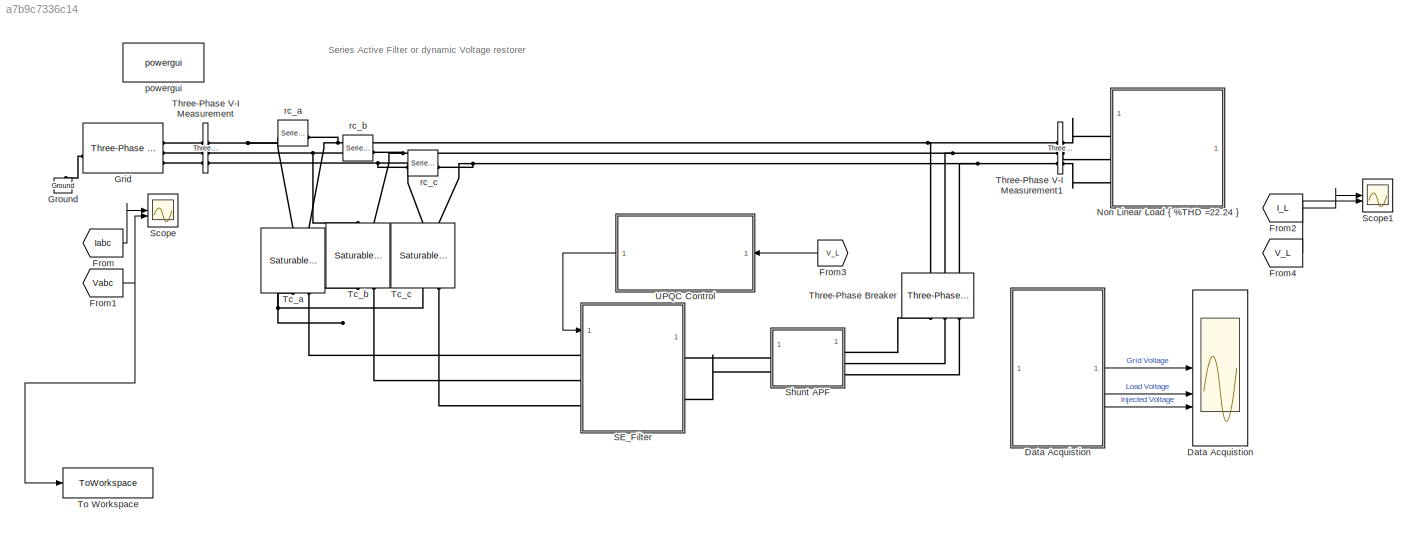
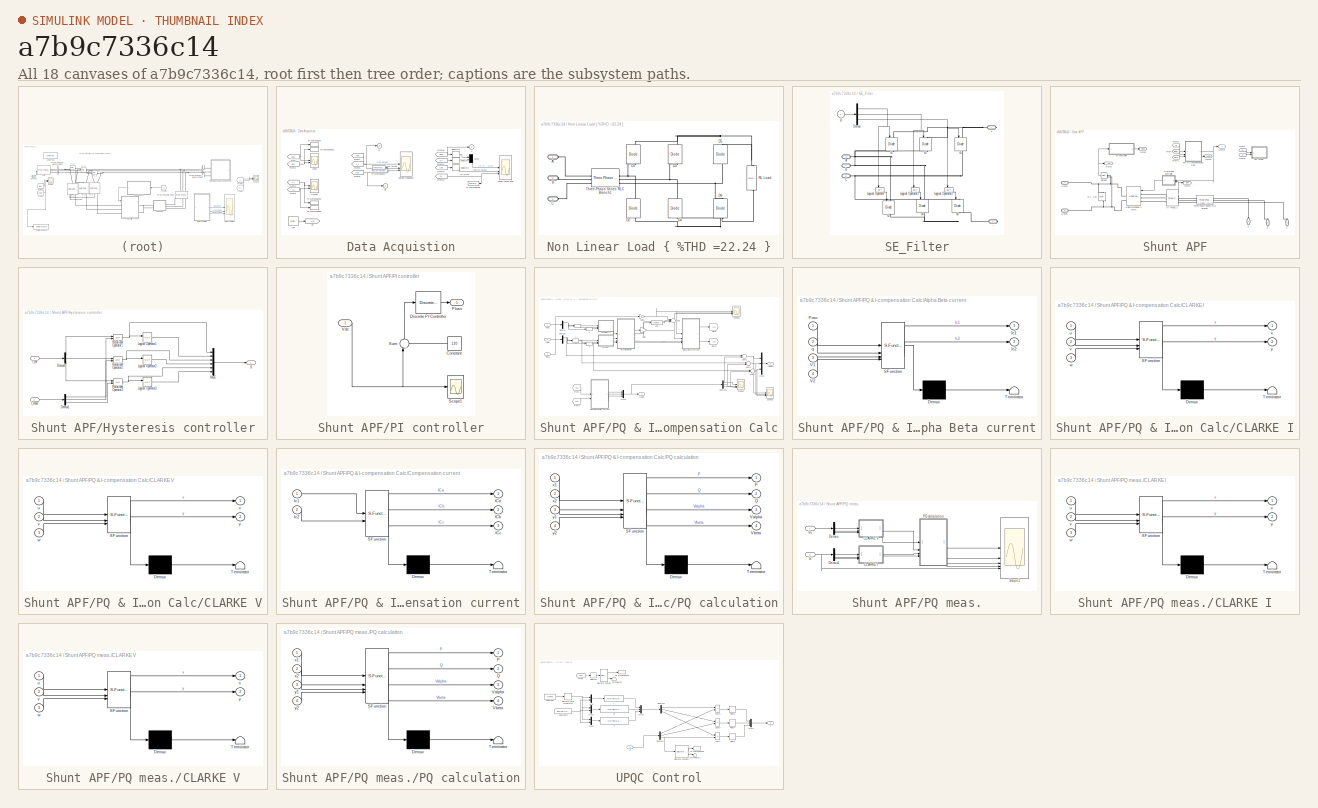
[diagram: thumbnail index - all 18 canvases of the model, root first then tree order]
MODEL slx_a7b9c7336c14
KIND model
CONFIG AbsTol = auto
CONFIG EnableMultiTasking = off
CONFIG FixedStep = auto
CONFIG InitFcn = Ts=5e-6;
CONFIG MaxStep = auto
CONFIG MinStep = auto
CONFIG RelTol = 1e-3
CONFIG SampleTimeConstraint = Unconstrained
CONFIG SolverName = VariableStepAuto
CONFIG StartTime = 0.0
CONFIG StopTime = 1
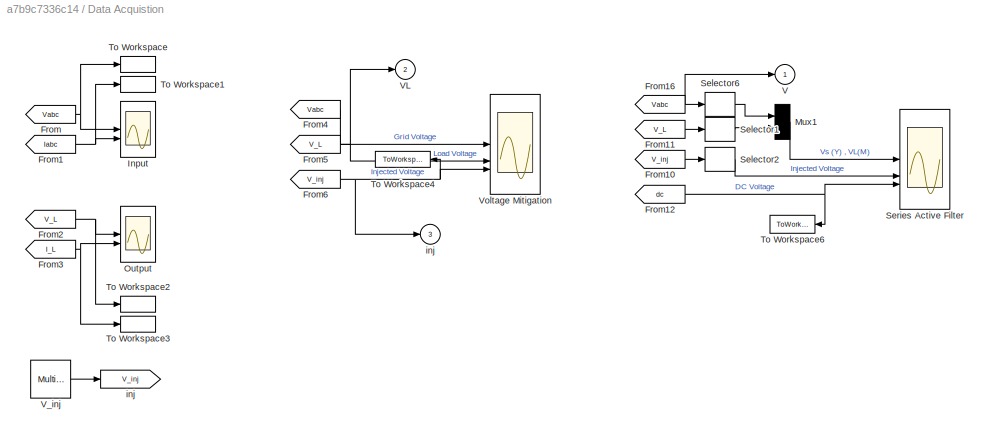
BLOCK [SubSystem] Data Acquistion
BLOCK [From] Data Acquistion/From
  GotoTag = Vabc
  TagVisibility = global
BLOCK [From] Data Acquistion/From1
  GotoTag = Iabc
  TagVisibility = global
BLOCK [From] Data Acquistion/From10
  GotoTag = V_inj
  TagVisibility = global
BLOCK [From] Data Acquistion/From11
  GotoTag = V_L
  TagVisibility = global
BLOCK [From] Data Acquistion/From12
  GotoTag = dc
BLOCK [From] Data Acquistion/From16
  GotoTag = Vabc
  TagVisibility = global
BLOCK [From] Data Acquistion/From2
  GotoTag = V_L
  TagVisibility = global
BLOCK [From] Data Acquistion/From3
  GotoTag = I_L
  TagVisibility = global
BLOCK [From] Data Acquistion/From4
  GotoTag = Vabc
  TagVisibility = global
BLOCK [From] Data Acquistion/From5
  GotoTag = V_L
  TagVisibility = global
BLOCK [From] Data Acquistion/From6
  GotoTag = V_inj
  TagVisibility = global
BLOCK [Scope] Data Acquistion/Input
  Floating = off
  NumInputPorts = 2
  ScopeSpecificationString = C++SS(StrPVP('Location','[95, 96, 553, 673]'),StrPVP('Open','off'),MxPVP('AxesTitles',54,'struct(''axes1'',''%<SignalLabel>'',''axes2'',''%<SignalLabel>'')'),StrPVP('TimeRange','0.1'),StrPVP('YMin','-400~-15'),StrPVP('YMax','400~15'),StrPVP('SaveName','Grid_pi'),StrPVP('DataFormat','StructureWithTime'),StrPVP('LimitDataPoints','off'),StrPVP('BlockParamSampleTime','0'),StrPVP('Decimation','1'),StrP...<+34ch>
BLOCK [Mux] Data Acquistion/Mux1
  DisplayOption = signals
  Inputs = 2
BLOCK [Scope] Data Acquistion/Output
  Floating = off
  NumInputPorts = 2
  ScopeSpecificationString = C++SS(StrPVP('Location','[644, 113, 1059, 634]'),StrPVP('Open','off'),StrPVP('ZoomMode','xonly'),MxPVP('AxesTitles',54,'struct(''axes1'',''%<SignalLabel>'',''axes2'',''%<SignalLabel>'')'),StrPVP('TimeRange','0.1'),StrPVP('YMin','-400~-10'),StrPVP('YMax','400~10'),StrPVP('SaveName','Load_pi'),StrPVP('DataFormat','StructureWithTime'),StrPVP('LimitDataPoints','off'),StrPVP('BlockParamSampleTime','0')...<+64ch>
BLOCK [Selector] Data Acquistion/Selector1
  IndexOptions = Index vector (dialog)
  Indices = 1
  InputPortWidth = 3
  OutputSizes = 1
BLOCK [Selector] Data Acquistion/Selector2
  IndexOptions = Index vector (dialog)
  Indices = 1
  InputPortWidth = 3
  OutputSizes = 1
BLOCK [Selector] Data Acquistion/Selector6
  IndexOptions = Index vector (dialog)
  Indices = 1
  InputPortWidth = 3
  OutputSizes = 1
BLOCK [Scope] Data Acquistion/Series Active Filter
  Floating = off
  NumInputPorts = 3
  ScopeSpecificationString = C++SS(StrPVP('Location','[723, 65, 1337, 717]'),StrPVP('Open','off'),StrPVP('TickLabels','on'),StrPVP('ZoomMode','yonly'),MxPVP('AxesTitles',54,'struct(''axes1'',''%<SignalLabel>'',''axes2'',''%<SignalLabel>'',''axes3'',''%<SignalLabel>'')'),StrPVP('TimeRange','2'),StrPVP('YMin','-350~-175~600'),StrPVP('YMax','350~175~1000'),StrPVP('SaveName','se_pi'),StrPVP('DataFormat','StructureWithTime'),StrPV...<+125ch>
BLOCK [ToWorkspace] Data Acquistion/To Workspace
  MaxDataPoints = inf
  SampleTime = Ts
  VariableName = Vs_pi
BLOCK [ToWorkspace] Data Acquistion/To Workspace1
  MaxDataPoints = inf
  SampleTime = Ts
  VariableName = Is_pi
BLOCK [ToWorkspace] Data Acquistion/To Workspace2
  MaxDataPoints = inf
  SampleTime = Ts
  VariableName = VL_pi
BLOCK [ToWorkspace] Data Acquistion/To Workspace3
  MaxDataPoints = inf
  SampleTime = Ts
  VariableName = IL_pi
BLOCK [ToWorkspace] Data Acquistion/To Workspace4
  MaxDataPoints = inf
  SampleTime = Ts
  VariableName = V_inj_pi
BLOCK [ToWorkspace] Data Acquistion/To Workspace6
  MaxDataPoints = inf
  SampleTime = Ts
  VariableName = Vdc_pi
BLOCK [Outport] Data Acquistion/V
BLOCK [Outport] Data Acquistion/VL
  Port = 2
BLOCK [Reference] Data Acquistion/V_inj  REF=spsMultimeterLib/Multimeter
  SourceBlock = spsMultimeterLib/Multimeter
  SourceType = Multimeter
BLOCK [Scope] Data Acquistion/Voltage Mitigation
  Floating = off
  NumInputPorts = 3
  ScopeSpecificationString = C++SS(StrPVP('Location','[334, 69, 992, 700]'),StrPVP('Open','off'),StrPVP('ZoomMode','xonly'),MxPVP('AxesTitles',54,'struct(''axes1'',''%<SignalLabel>'',''axes2'',''%<SignalLabel>'',''axes3'',''%<SignalLabel>'')'),StrPVP('TimeRange','0.2'),StrPVP('YMin','-500~-500~-200'),StrPVP('YMax','500~500~200'),StrPVP('SaveToWorkspace','on'),StrPVP('SaveName','voltage_pi'),StrPVP('DataFormat','StructureWithT...<+136ch>
BLOCK [Goto] Data Acquistion/inj
  GotoTag = V_inj
  TagVisibility = global
BLOCK [Outport] Data Acquistion/inj 
  Port = 3
BLOCK [From] From
  GotoTag = Iabc
  TagVisibility = global
BLOCK [From] From1
  GotoTag = Vabc
  TagVisibility = global
BLOCK [From] From2
  GotoTag = I_L
  TagVisibility = global
BLOCK [From] From3
  GotoTag = V_L
  TagVisibility = global
BLOCK [From] From4
  GotoTag = V_L
  TagVisibility = global
BLOCK [Reference] Grid  REF=spsThreePhaseProgrammableVoltageSourceLib/Three-Phase
Programmable
Voltage Source
  LibrarySourceBlock = sps_lib/Sources/Three-Phase\nProgrammable\nVoltage Source
  SourceBlock = spsThreePhaseProgrammableVoltageSourceLib/Three-Phase\nProgrammable\nVoltage Source
  SourceType = Three-Phase Programmable Voltage Source
BLOCK [Reference] Ground  REF=spsGroundLib/Ground
  NameLocation = right
  SourceBlock = spsGroundLib/Ground
  SourceType = Ground
BLOCK [SubSystem] Non Linear Load { %THD =22.24 }
BLOCK [PMIOPort] Non Linear Load { %THD =22.24 }/A
  Side = Left
BLOCK [PMIOPort] Non Linear Load { %THD =22.24 }/B
  Port = 2
  Side = Left
BLOCK [PMIOPort] Non Linear Load { %THD =22.24 }/C
  Port = 3
  Side = Left
BLOCK [Reference] Non Linear Load { %THD =22.24 }/D1  REF=spsDiodeLib/Diode
  NameLocation = left
  SourceBlock = spsDiodeLib/Diode
  SourceType = Diode
BLOCK [Reference] Non Linear Load { %THD =22.24 }/D2  REF=spsDiodeLib/Diode
  NameLocation = left
  SourceBlock = spsDiodeLib/Diode
  SourceType = Diode
BLOCK [Reference] Non Linear Load { %THD =22.24 }/D3  REF=spsDiodeLib/Diode
  NameLocation = left
  SourceBlock = spsDiodeLib/Diode
  SourceType = Diode
BLOCK [Reference] Non Linear Load { %THD =22.24 }/D4  REF=spsDiodeLib/Diode
  NameLocation = left
  SourceBlock = spsDiodeLib/Diode
  SourceType = Diode
BLOCK [Reference] Non Linear Load { %THD =22.24 }/D5  REF=spsDiodeLib/Diode
  NameLocation = left
  SourceBlock = spsDiodeLib/Diode
  SourceType = Diode
BLOCK [Reference] Non Linear Load { %THD =22.24 }/D6  REF=spsDiodeLib/Diode
  NameLocation = left
  SourceBlock = spsDiodeLib/Diode
  SourceType = Diode
BLOCK [Reference] Non Linear Load { %THD =22.24 }/RL Load  REF=spsSeriesRLCBranchLib/Series RLC Branch
  NameLocation = right
  SourceBlock = spsSeriesRLCBranchLib/Series RLC Branch
  SourceType = Series RLC Branch
BLOCK [Reference] Non Linear Load { %THD =22.24 }/Three-Phase Series RLC Branch1  REF=spsThreePhaseSeriesRLCBranchLib/Three-Phase
Series RLC Branch
  AttributesFormatString = \n
  SourceBlock = spsThreePhaseSeriesRLCBranchLib/Three-Phase\nSeries RLC Branch
  SourceType = Three-Phase Series RLC Branch
BLOCK [SubSystem] SE_Filter
BLOCK [PMIOPort] SE_Filter/+
  Side = Right
BLOCK [PMIOPort] SE_Filter/-
  Port = 2
  Side = Right
BLOCK [PMIOPort] SE_Filter/A
  Port = 3
  Side = Left
BLOCK [PMIOPort] SE_Filter/B
  Port = 4
  Side = Left
BLOCK [PMIOPort] SE_Filter/C
  Port = 5
  Side = Left
BLOCK [Demux] SE_Filter/Demux
  DisplayOption = none
  NameLocation = top
  Outputs = 3
BLOCK [Logic] SE_Filter/Logical Operator
  AllPortsSameDT = off
  NameLocation = left
  Operator = NOT
  OutDataTypeStr = boolean
BLOCK [Logic] SE_Filter/Logical Operator1
  AllPortsSameDT = off
  NameLocation = left
  Operator = NOT
  OutDataTypeStr = boolean
BLOCK [Logic] SE_Filter/Logical Operator2
  AllPortsSameDT = off
  NameLocation = left
  Operator = NOT
  OutDataTypeStr = boolean
BLOCK [Inport] SE_Filter/g
  NameLocation = top
BLOCK [Reference] SE_Filter/s1  REF=spsIGBTDiodeLib/IGBT//Diode
  NameLocation = left
  SourceBlock = spsIGBTDiodeLib/IGBT//Diode
  SourceType = IGBT/Diode
BLOCK [Reference] SE_Filter/s2  REF=spsIGBTDiodeLib/IGBT//Diode
  NameLocation = left
  SourceBlock = spsIGBTDiodeLib/IGBT//Diode
  SourceType = IGBT/Diode
BLOCK [Reference] SE_Filter/s3  REF=spsIGBTDiodeLib/IGBT//Diode
  NameLocation = left
  SourceBlock = spsIGBTDiodeLib/IGBT//Diode
  SourceType = IGBT/Diode
BLOCK [Reference] SE_Filter/s4  REF=spsIGBTDiodeLib/IGBT//Diode
  NameLocation = left
  SourceBlock = spsIGBTDiodeLib/IGBT//Diode
  SourceType = IGBT/Diode
BLOCK [Reference] SE_Filter/s5  REF=spsIGBTDiodeLib/IGBT//Diode
  NameLocation = left
  SourceBlock = spsIGBTDiodeLib/IGBT//Diode
  SourceType = IGBT/Diode
BLOCK [Reference] SE_Filter/s6  REF=spsIGBTDiodeLib/IGBT//Diode
  NameLocation = left
  SourceBlock = spsIGBTDiodeLib/IGBT//Diode
  SourceType = IGBT/Diode
BLOCK [Scope] Scope
  Floating = off
  NumInputPorts = 2
  ScopeSpecificationString = Simulink.scopes.TimeScopeBlockCfg('CurrentConfiguration', extmgr.ConfigurationSet(extmgr.Configuration('Core','General UI',true),extmgr.Configuration('Core','Source UI',true),extmgr.Configuration('Sources','WiredSimulink',true,'DataLoggingVariableName','ScopeData2'),extmgr.Configuration('Visuals','Time Domain',true,'SerializedDisplays',{struct('MinYLimReal','-79.27941','MaxYLimReal','79.36965','YL...<+2346ch>
BLOCK [Scope] Scope1
  Floating = off
  NumInputPorts = 2
  ScopeSpecificationString = Simulink.scopes.TimeScopeBlockCfg('CurrentConfiguration', extmgr.ConfigurationSet(extmgr.Configuration('Core','General UI',true),extmgr.Configuration('Core','Source UI',true),extmgr.Configuration('Sources','WiredSimulink',true,'DataLoggingVariableName','ScopeData3'),extmgr.Configuration('Visuals','Time Domain',true,'SerializedDisplays',{struct('MinYLimReal','-10.20042','MaxYLimReal','10.26348','YL...<+2342ch>
BLOCK [SubSystem] Shunt APF
  NameLocation = top
  PortSchema = {"entries":[{"content":{"sides":[{"content":{"connectorIds":["LConn1","LConn2","LConn3"]},"type":"ConnectorPlacement.EquallySpacedRectSide","uuid":"d6bbf745-3af2-48b6-83a9-f1a4b39ae2fb"},{"content":{"connectorIds":["RConn1","RConn2","Out1"],"side":"RIGHT"},"type":"ConnectorPlacement.EquallySpacedRectSide","uuid":"e94a56cb-32a6-4b87-b27c-70bac7a36721"},{"content":{"side":"TOP"},"type":"ConnectorPla...<+261ch>
BLOCK [PMIOPort] Shunt APF/Conn4
  NameLocation = top
  Port = 4
  Side = Right
BLOCK [PMIOPort] Shunt APF/Conn5
  NameLocation = top
  Port = 5
  Side = Right
BLOCK [Reference] Shunt APF/DC Cap  REF=spsSeriesRLCBranchLib/Series RLC Branch
  NameLocation = left
  SourceBlock = spsSeriesRLCBranchLib/Series RLC Branch
  SourceType = Series RLC Branch
BLOCK [From] Shunt APF/From
  CloseFcn = tagdialog Close
  GotoTag = Iload
BLOCK [From] Shunt APF/From1
  CloseFcn = tagdialog Close
  GotoTag = Ploss
  TagVisibility = global
BLOCK [From] Shunt APF/From3
  CloseFcn = tagdialog Close
  GotoTag = Vs
BLOCK [From] Shunt APF/From7
  CloseFcn = tagdialog Close
  GotoTag = Vs
BLOCK [From] Shunt APF/From8
  CloseFcn = tagdialog Close
  GotoTag = Is
BLOCK [Goto] Shunt APF/Goto1
  GotoTag = Vdc
  TagVisibility = global
BLOCK [Goto] Shunt APF/Goto2
  GotoTag = Icomp
BLOCK [Goto] Shunt APF/Goto3
  GotoTag = Ploss
  TagVisibility = global
BLOCK [Goto] Shunt APF/Goto4
  GotoTag = Iapf
  TagVisibility = global
BLOCK [SubSystem] Shunt APF/Hysteresis controller
  NameLocation = top
BLOCK [Demux] Shunt APF/Hysteresis controller/Demux1
  NameLocation = top
  Outputs = 3
BLOCK [Demux] Shunt APF/Hysteresis controller/Demux9
  NameLocation = top
  Outputs = 3
BLOCK [Inport] Shunt APF/Hysteresis controller/I_meas
  Port = 2
BLOCK [Inport] Shunt APF/Hysteresis controller/I_ref
BLOCK [Logic] Shunt APF/Hysteresis controller/Logical Operator1
  AllPortsSameDT = off
  Operator = NOT
  OutDataTypeStr = boolean
BLOCK [Logic] Shunt APF/Hysteresis controller/Logical Operator2
  AllPortsSameDT = off
  Operator = NOT
  OutDataTypeStr = boolean
BLOCK [Logic] Shunt APF/Hysteresis controller/Logical Operator3
  AllPortsSameDT = off
  Operator = NOT
  OutDataTypeStr = boolean
BLOCK [Mux] Shunt APF/Hysteresis controller/Mux5
  DisplayOption = bar
  Inputs = 6
BLOCK [RelationalOperator] Shunt APF/Hysteresis controller/Relational Operator1
  InputSameDT = off
  OutDataTypeStr = boolean
BLOCK [RelationalOperator] Shunt APF/Hysteresis controller/Relational Operator2
  InputSameDT = off
  OutDataTypeStr = boolean
BLOCK [RelationalOperator] Shunt APF/Hysteresis controller/Relational Operator3
  InputSameDT = off
  OutDataTypeStr = boolean
BLOCK [Outport] Shunt APF/Hysteresis controller/g
BLOCK [Outport] Shunt APF/Icomp*
BLOCK [SubSystem] Shunt APF/PI controller
BLOCK [Constant] Shunt APF/PI controller/Constant
  NameLocation = top
  Value = 120
BLOCK [Reference] Shunt APF/PI controller/Discrete PI Controller  REF=powerlib_extras/Discrete 
Control Blocks/Discrete
PI Controller
  SourceBlock = powerlib_extras/Discrete \nControl Blocks/Discrete\nPI Controller
  SourceType = Discrete PI Controller
BLOCK [Outport] Shunt APF/PI controller/Ploss
BLOCK [Scope] Shunt APF/PI controller/Scope1
  Floating = off
  NumInputPorts = 1
  ScopeSpecificationString = C++SS(StrPVP('Location','[6, 48, 1026, 727]'),StrPVP('Open','off'),StrPVP('ZoomMode','yonly'),MxPVP('AxesTitles',54,'struct(''axes1'',''%<SignalLabel>'')'),StrPVP('TimeRange','0.1'),StrPVP('YMin','-1000'),StrPVP('YMax','14000'),StrPVP('SaveToWorkspace','on'),StrPVP('SaveName','psb3phPWM1_str1'),StrPVP('DataFormat','StructureWithTime'),StrPVP('LimitDataPoints','off'),StrPVP('MaxDataPoints','500000'...<+100ch>
BLOCK [Sum] Shunt APF/PI controller/Sum
  Inputs = |-+
  NameLocation = right
BLOCK [Inport] Shunt APF/PI controller/Vdc
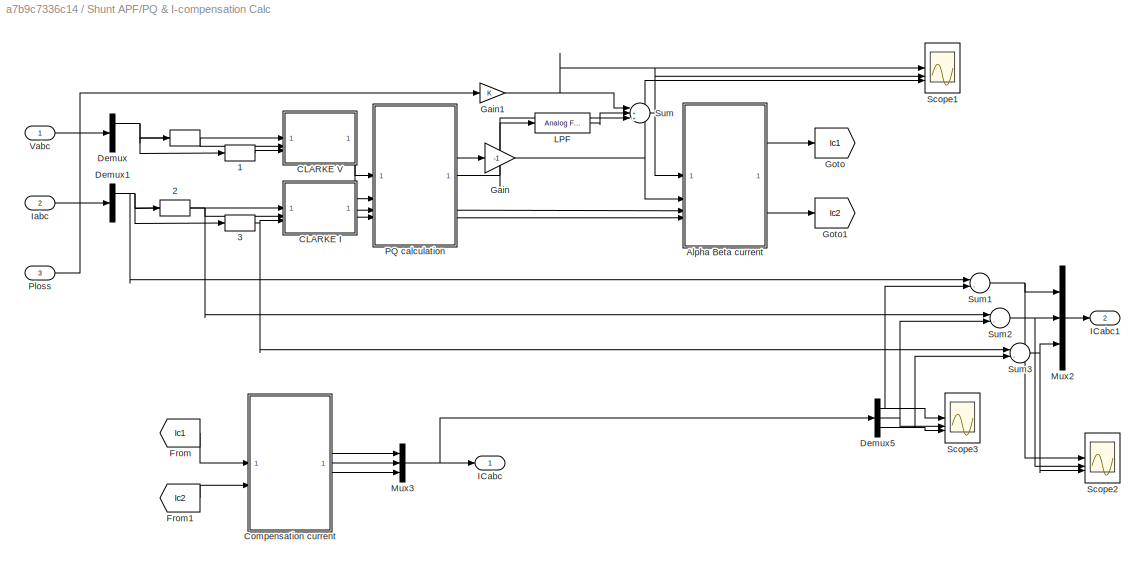
BLOCK [SubSystem] Shunt APF/PQ & I-compensation Calc
BLOCK [TransportDelay] Shunt APF/PQ & I-compensation Calc/ 
  BufferSize = 6890
  DelayTime = 0.006666666
BLOCK [TransportDelay] Shunt APF/PQ & I-compensation Calc/ 1
  BufferSize = 77889
  DelayTime = 0.013333333
BLOCK [TransportDelay] Shunt APF/PQ & I-compensation Calc/ 2
  BufferSize = 6789
  DelayTime = 0.006666666
BLOCK [TransportDelay] Shunt APF/PQ & I-compensation Calc/ 3
  BufferSize = 5667
  DelayTime = 0.013333333
BLOCK [SubSystem] Shunt APF/PQ & I-compensation Calc/Alpha Beta current
  ErrorFcn = Stateflow.Translate.translate
  PermitHierarchicalResolution = ExplicitOnly
  SFBlockType = MATLAB Function
  TreatAsAtomicUnit = on
BLOCK [Demux] Shunt APF/PQ & I-compensation Calc/Alpha Beta current/ Demux 
  Outputs = 1
BLOCK [S-Function] Shunt APF/PQ & I-compensation Calc/Alpha Beta current/ SFunction 
  EnableBusSupport = on
  FunctionName = sf_sfun
  PortCounts = [4 3]
  SFcnIsStateOwnerBlock = off
  SFunctionDeploymentMode = off
  Tag = Stateflow S-Function 5
BLOCK [Terminator] Shunt APF/PQ & I-compensation Calc/Alpha Beta current/ Terminator 
BLOCK [Outport] Shunt APF/PQ & I-compensation Calc/Alpha Beta current/Ic1
BLOCK [Outport] Shunt APF/PQ & I-compensation Calc/Alpha Beta current/Ic2
  Port = 2
BLOCK [Inport] Shunt APF/PQ & I-compensation Calc/Alpha Beta current/Posc
BLOCK [Inport] Shunt APF/PQ & I-compensation Calc/Alpha Beta current/V1
  Port = 3
BLOCK [Inport] Shunt APF/PQ & I-compensation Calc/Alpha Beta current/V2
  Port = 4
BLOCK [Inport] Shunt APF/PQ & I-compensation Calc/Alpha Beta current/q
  Port = 2
BLOCK [SubSystem] Shunt APF/PQ & I-compensation Calc/CLARKE I
  ErrorFcn = Stateflow.Translate.translate
  PermitHierarchicalResolution = ExplicitOnly
  SFBlockType = MATLAB Function
  TreatAsAtomicUnit = on
BLOCK [Demux] Shunt APF/PQ & I-compensation Calc/CLARKE I/ Demux 
  Outputs = 1
BLOCK [S-Function] Shunt APF/PQ & I-compensation Calc/CLARKE I/ SFunction 
  EnableBusSupport = on
  FunctionName = sf_sfun
  PortCounts = [3 3]
  SFcnIsStateOwnerBlock = off
  SFunctionDeploymentMode = off
  Tag = Stateflow S-Function 1
BLOCK [Terminator] Shunt APF/PQ & I-compensation Calc/CLARKE I/ Terminator 
BLOCK [Inport] Shunt APF/PQ & I-compensation Calc/CLARKE I/u
BLOCK [Inport] Shunt APF/PQ & I-compensation Calc/CLARKE I/v
  Port = 2
BLOCK [Inport] Shunt APF/PQ & I-compensation Calc/CLARKE I/w
  Port = 3
BLOCK [Outport] Shunt APF/PQ & I-compensation Calc/CLARKE I/x
BLOCK [Outport] Shunt APF/PQ & I-compensation Calc/CLARKE I/y
  Port = 2
BLOCK [SubSystem] Shunt APF/PQ & I-compensation Calc/CLARKE V
  ErrorFcn = Stateflow.Translate.translate
  PermitHierarchicalResolution = ExplicitOnly
  SFBlockType = MATLAB Function
  TreatAsAtomicUnit = on
BLOCK [Demux] Shunt APF/PQ & I-compensation Calc/CLARKE V/ Demux 
  Outputs = 1
BLOCK [S-Function] Shunt APF/PQ & I-compensation Calc/CLARKE V/ SFunction 
  EnableBusSupport = on
  FunctionName = sf_sfun
  PortCounts = [3 3]
  SFcnIsStateOwnerBlock = off
  SFunctionDeploymentMode = off
  Tag = Stateflow S-Function 2
BLOCK [Terminator] Shunt APF/PQ & I-compensation Calc/CLARKE V/ Terminator 
BLOCK [Inport] Shunt APF/PQ & I-compensation Calc/CLARKE V/u
BLOCK [Inport] Shunt APF/PQ & I-compensation Calc/CLARKE V/v
  Port = 2
BLOCK [Inport] Shunt APF/PQ & I-compensation Calc/CLARKE V/w
  Port = 3
BLOCK [Outport] Shunt APF/PQ & I-compensation Calc/CLARKE V/x
BLOCK [Outport] Shunt APF/PQ & I-compensation Calc/CLARKE V/y
  Port = 2
BLOCK [SubSystem] Shunt APF/PQ & I-compensation Calc/Compensation current
  ErrorFcn = Stateflow.Translate.translate
  PermitHierarchicalResolution = ExplicitOnly
  SFBlockType = MATLAB Function
  TreatAsAtomicUnit = on
BLOCK [Demux] Shunt APF/PQ & I-compensation Calc/Compensation current/ Demux 
  Outputs = 1
BLOCK [S-Function] Shunt APF/PQ & I-compensation Calc/Compensation current/ SFunction 
  EnableBusSupport = on
  FunctionName = sf_sfun
  PortCounts = [2 4]
  SFcnIsStateOwnerBlock = off
  SFunctionDeploymentMode = off
  Tag = Stateflow S-Function 4
BLOCK [Terminator] Shunt APF/PQ & I-compensation Calc/Compensation current/ Terminator 
BLOCK [Outport] Shunt APF/PQ & I-compensation Calc/Compensation current/ICa
BLOCK [Outport] Shunt APF/PQ & I-compensation Calc/Compensation current/ICb
  Port = 2
BLOCK [Outport] Shunt APF/PQ & I-compensation Calc/Compensation current/ICc
  Port = 3
BLOCK [Inport] Shunt APF/PQ & I-compensation Calc/Compensation current/Ic1
BLOCK [Inport] Shunt APF/PQ & I-compensation Calc/Compensation current/Ic2
  Port = 2
BLOCK [Demux] Shunt APF/PQ & I-compensation Calc/Demux
  Outputs = 3
BLOCK [Demux] Shunt APF/PQ & I-compensation Calc/Demux1
  Outputs = 3
BLOCK [Demux] Shunt APF/PQ & I-compensation Calc/Demux5
  Outputs = 3
BLOCK [From] Shunt APF/PQ & I-compensation Calc/From
  GotoTag = Ic1
BLOCK [From] Shunt APF/PQ & I-compensation Calc/From1
  GotoTag = Ic2
BLOCK [Gain] Shunt APF/PQ & I-compensation Calc/Gain
  Gain = -1
BLOCK [Gain] Shunt APF/PQ & I-compensation Calc/Gain1
BLOCK [Goto] Shunt APF/PQ & I-compensation Calc/Goto
  GotoTag = Ic1
BLOCK [Goto] Shunt APF/PQ & I-compensation Calc/Goto1
  GotoTag = Ic2
BLOCK [Outport] Shunt APF/PQ & I-compensation Calc/ICabc
BLOCK [Outport] Shunt APF/PQ & I-compensation Calc/ICabc1
  Port = 2
BLOCK [Inport] Shunt APF/PQ & I-compensation Calc/Iabc
  Port = 2
BLOCK [Reference] Shunt APF/PQ & I-compensation Calc/LPF  REF=dspfdesign/Analog
Filter Design
  SourceBlock = dspfdesign/Analog\nFilter Design
  SourceType = Analog Filter Design
BLOCK [Mux] Shunt APF/PQ & I-compensation Calc/Mux2
  DisplayOption = bar
  Inputs = 3
BLOCK [Mux] Shunt APF/PQ & I-compensation Calc/Mux3
  DisplayOption = bar
  Inputs = 3
BLOCK [SubSystem] Shunt APF/PQ & I-compensation Calc/PQ calculation
  ErrorFcn = Stateflow.Translate.translate
  PermitHierarchicalResolution = ExplicitOnly
  SFBlockType = MATLAB Function
  TreatAsAtomicUnit = on
BLOCK [Demux] Shunt APF/PQ & I-compensation Calc/PQ calculation/ Demux 
  Outputs = 1
BLOCK [S-Function] Shunt APF/PQ & I-compensation Calc/PQ calculation/ SFunction 
  EnableBusSupport = on
  FunctionName = sf_sfun
  PortCounts = [4 5]
  SFcnIsStateOwnerBlock = off
  SFunctionDeploymentMode = off
  Tag = Stateflow S-Function 3
BLOCK [Terminator] Shunt APF/PQ & I-compensation Calc/PQ calculation/ Terminator 
BLOCK [Outport] Shunt APF/PQ & I-compensation Calc/PQ calculation/P
BLOCK [Outport] Shunt APF/PQ & I-compensation Calc/PQ calculation/Q
  Port = 2
BLOCK [Outport] Shunt APF/PQ & I-compensation Calc/PQ calculation/Valpha
  Port = 3
BLOCK [Outport] Shunt APF/PQ & I-compensation Calc/PQ calculation/Vbeta
  Port = 4
BLOCK [Inport] Shunt APF/PQ & I-compensation Calc/PQ calculation/x1
BLOCK [Inport] Shunt APF/PQ & I-compensation Calc/PQ calculation/x2
  Port = 2
BLOCK [Inport] Shunt APF/PQ & I-compensation Calc/PQ calculation/y1
  Port = 3
BLOCK [Inport] Shunt APF/PQ & I-compensation Calc/PQ calculation/y2
  Port = 4
BLOCK [Inport] Shunt APF/PQ & I-compensation Calc/Ploss
  Port = 3
BLOCK [Scope] Shunt APF/PQ & I-compensation Calc/Scope1
  Floating = off
  NumInputPorts = 3
  ScopeSpecificationString = C++SS(StrPVP('Location','[255, 57, 1275, 736]'),StrPVP('Open','off'),StrPVP('ZoomMode','xonly'),MxPVP('AxesTitles',54,'struct(''axes1'',''%<SignalLabel>'',''axes2'',''%<SignalLabel>'',''axes3'',''%<SignalLabel>'')'),StrPVP('TimeRange','0.1'),StrPVP('YMin','3.575~4.5~-22'),StrPVP('YMax','3.875~9.5~-17'),StrPVP('SaveToWorkspace','on'),StrPVP('SaveName','psb3phPWM1_str9'),StrPVP('DataFormat','Structu...<+176ch>
BLOCK [Scope] Shunt APF/PQ & I-compensation Calc/Scope2
  Floating = off
  NumInputPorts = 3
  ScopeSpecificationString = C++SS(StrPVP('Location','[255, 57, 1275, 736]'),StrPVP('Open','off'),StrPVP('ZoomMode','xonly'),MxPVP('AxesTitles',54,'struct(''axes1'',''%<SignalLabel>'',''axes2'',''%<SignalLabel>'',''axes3'',''%<SignalLabel>'')'),StrPVP('TimeRange','0.1'),StrPVP('YMin','0.9825~-0.7725~-0.265'),StrPVP('YMax','1.0025~-0.735~-0.21'),StrPVP('SaveToWorkspace','on'),StrPVP('SaveName','psb3phPWM1_str2'),StrPVP('DataFo...<+190ch>
BLOCK [Scope] Shunt APF/PQ & I-compensation Calc/Scope3
  Floating = off
  NumInputPorts = 3
  ScopeSpecificationString = C++SS(StrPVP('Location','[255, 57, 1275, 736]'),StrPVP('Open','off'),StrPVP('ZoomMode','xonly'),MxPVP('AxesTitles',54,'struct(''axes1'',''%<SignalLabel>'',''axes2'',''%<SignalLabel>'',''axes3'',''%<SignalLabel>'')'),StrPVP('TimeRange','0.1'),StrPVP('YMin','-0.0625~-0.01~0.0325'),StrPVP('YMax','-0.04~0.01~0.07'),StrPVP('SaveToWorkspace','on'),StrPVP('SaveName','psb3phPWM1_str7'),StrPVP('DataFormat'...<+185ch>
BLOCK [Sum] Shunt APF/PQ & I-compensation Calc/Sum
  Inputs = |++-
BLOCK [Sum] Shunt APF/PQ & I-compensation Calc/Sum1
  Inputs = |-+
BLOCK [Sum] Shunt APF/PQ & I-compensation Calc/Sum2
  Inputs = |-+
BLOCK [Sum] Shunt APF/PQ & I-compensation Calc/Sum3
  Inputs = |-+
BLOCK [Inport] Shunt APF/PQ & I-compensation Calc/Vabc
BLOCK [SubSystem] Shunt APF/PQ meas.
BLOCK [SubSystem] Shunt APF/PQ meas./CLARKE I
  ErrorFcn = Stateflow.Translate.translate
  PermitHierarchicalResolution = ExplicitOnly
  SFBlockType = MATLAB Function
  TreatAsAtomicUnit = on
BLOCK [Demux] Shunt APF/PQ meas./CLARKE I/ Demux 
  Outputs = 1
BLOCK [S-Function] Shunt APF/PQ meas./CLARKE I/ SFunction 
  EnableBusSupport = on
  FunctionName = sf_sfun
  PortCounts = [3 3]
  SFcnIsStateOwnerBlock = off
  SFunctionDeploymentMode = off
  Tag = Stateflow S-Function 6
BLOCK [Terminator] Shunt APF/PQ meas./CLARKE I/ Terminator 
BLOCK [Inport] Shunt APF/PQ meas./CLARKE I/u
BLOCK [Inport] Shunt APF/PQ meas./CLARKE I/v
  Port = 2
BLOCK [Inport] Shunt APF/PQ meas./CLARKE I/w
  Port = 3
BLOCK [Outport] Shunt APF/PQ meas./CLARKE I/x
BLOCK [Outport] Shunt APF/PQ meas./CLARKE I/y
  Port = 2
BLOCK [SubSystem] Shunt APF/PQ meas./CLARKE V
  ErrorFcn = Stateflow.Translate.translate
  PermitHierarchicalResolution = ExplicitOnly
  SFBlockType = MATLAB Function
  TreatAsAtomicUnit = on
BLOCK [Demux] Shunt APF/PQ meas./CLARKE V/ Demux 
  Outputs = 1
BLOCK [S-Function] Shunt APF/PQ meas./CLARKE V/ SFunction 
  EnableBusSupport = on
  FunctionName = sf_sfun
  PortCounts = [3 3]
  SFcnIsStateOwnerBlock = off
  SFunctionDeploymentMode = off
  Tag = Stateflow S-Function 7
BLOCK [Terminator] Shunt APF/PQ meas./CLARKE V/ Terminator 
BLOCK [Inport] Shunt APF/PQ meas./CLARKE V/u
BLOCK [Inport] Shunt APF/PQ meas./CLARKE V/v
  Port = 2
BLOCK [Inport] Shunt APF/PQ meas./CLARKE V/w
  Port = 3
BLOCK [Outport] Shunt APF/PQ meas./CLARKE V/x
BLOCK [Outport] Shunt APF/PQ meas./CLARKE V/y
  Port = 2
BLOCK [Demux] Shunt APF/PQ meas./Demux
  Outputs = 3
BLOCK [Demux] Shunt APF/PQ meas./Demux1
  Outputs = 3
BLOCK [Inport] Shunt APF/PQ meas./Is
  Port = 2
BLOCK [SubSystem] Shunt APF/PQ meas./PQ calculation
  ErrorFcn = Stateflow.Translate.translate
  PermitHierarchicalResolution = ExplicitOnly
  SFBlockType = MATLAB Function
  TreatAsAtomicUnit = on
BLOCK [Demux] Shunt APF/PQ meas./PQ calculation/ Demux 
  Outputs = 1
BLOCK [S-Function] Shunt APF/PQ meas./PQ calculation/ SFunction 
  EnableBusSupport = on
  FunctionName = sf_sfun
  PortCounts = [4 5]
  SFcnIsStateOwnerBlock = off
  SFunctionDeploymentMode = off
  Tag = Stateflow S-Function 8
BLOCK [Terminator] Shunt APF/PQ meas./PQ calculation/ Terminator 
BLOCK [Outport] Shunt APF/PQ meas./PQ calculation/P
BLOCK [Outport] Shunt APF/PQ meas./PQ calculation/Q
  Port = 2
BLOCK [Outport] Shunt APF/PQ meas./PQ calculation/Valpha
  Port = 3
BLOCK [Outport] Shunt APF/PQ meas./PQ calculation/Vbeta
  Port = 4
BLOCK [Inport] Shunt APF/PQ meas./PQ calculation/x1
BLOCK [Inport] Shunt APF/PQ meas./PQ calculation/x2
  Port = 2
BLOCK [Inport] Shunt APF/PQ meas./PQ calculation/y1
  Port = 3
BLOCK [Inport] Shunt APF/PQ meas./PQ calculation/y2
  Port = 4
BLOCK [Scope] Shunt APF/PQ meas./Scope1
  Floating = off
  NumInputPorts = 5
  ScopeSpecificationString = C++SS(StrPVP('Location','[255, 57, 1275, 736]'),StrPVP('Open','off'),StrPVP('ZoomMode','xonly'),MxPVP('AxesTitles',54,'struct(''axes1'',''%<SignalLabel>'',''axes2'',''%<SignalLabel>'',''axes3'',''%<SignalLabel>'',''axes4'',''%<SignalLabel>'',''axes5'',''%<SignalLabel>'')'),StrPVP('TimeRange','0.1'),StrPVP('YMin','49.75~-1~-39.955~-2.7~-1.25'),StrPVP('YMax','51.5~1~-39.91~-1.8~0.75'),StrPVP('SaveTo...<+257ch>
BLOCK [Inport] Shunt APF/PQ meas./Vs
BLOCK [Reference] Shunt APF/Three-Phase Series RLC Branch  REF=spsThreePhaseSeriesRLCBranchLib/Three-Phase
Series RLC Branch
  AttributesFormatString = \n
  SourceBlock = spsThreePhaseSeriesRLCBranchLib/Three-Phase\nSeries RLC Branch
  SourceType = Three-Phase Series RLC Branch
BLOCK [Reference] Shunt APF/Universal Bridge 3 arms  REF=spsUniversalBridgeLib/Universal Bridge
  AttributesFormatString = \n
  SourceBlock = spsUniversalBridgeLib/Universal Bridge
  SourceType = Universal Bridge
BLOCK [Reference] Shunt APF/V-I meas.1  REF=spsThreePhaseVIMeasurementLib/Three-Phase
V-I Measurement
  SourceBlock = spsThreePhaseVIMeasurementLib/Three-Phase\nV-I Measurement
  SourceType = Three-Phase VI Measurement
BLOCK [Reference] Shunt APF/Voltage  REF=spsVoltageMeasurementLib/Voltage Measurement
  NameLocation = top
  SourceBlock = spsVoltageMeasurementLib/Voltage Measurement
  SourceType = Voltage Measurement
BLOCK [PMIOPort] Shunt APF/a
  NameLocation = left
  Side = Left
BLOCK [PMIOPort] Shunt APF/b
  NameLocation = left
  Port = 2
  Side = Left
BLOCK [PMIOPort] Shunt APF/c
  NameLocation = left
  Port = 3
  Side = Left
BLOCK [Reference] Tc_a  REF=spsSaturableTransformerLib/Saturable Transformer
  LibrarySourceBlock = sps_lib/Power Grid Elements/Saturable Transformer
  NameLocation = right
  SourceBlock = spsSaturableTransformerLib/Saturable Transformer
  SourceType = Saturable Transformer
BLOCK [Reference] Tc_b  REF=spsSaturableTransformerLib/Saturable Transformer
  LibrarySourceBlock = sps_lib/Power Grid Elements/Saturable Transformer
  NameLocation = right
  SourceBlock = spsSaturableTransformerLib/Saturable Transformer
  SourceType = Saturable Transformer
BLOCK [Reference] Tc_c  REF=spsSaturableTransformerLib/Saturable Transformer
  LibrarySourceBlock = sps_lib/Power Grid Elements/Saturable Transformer
  NameLocation = right
  SourceBlock = spsSaturableTransformerLib/Saturable Transformer
  SourceType = Saturable Transformer
BLOCK [Reference] Three-Phase Breaker  REF=spsThreePhaseBreakerLib/Three-Phase Breaker
  LibrarySourceBlock = sps_lib/Power Grid Elements/Three-Phase Breaker
  NameLocation = left
  SourceBlock = spsThreePhaseBreakerLib/Three-Phase Breaker
  SourceType = Three-Phase Breaker
BLOCK [Reference] Three-Phase V-I Measurement  REF=spsThreePhaseVIMeasurementLib/Three-Phase
V-I Measurement
  SourceBlock = spsThreePhaseVIMeasurementLib/Three-Phase\nV-I Measurement
  SourceType = Three-Phase VI Measurement
BLOCK [Reference] Three-Phase V-I Measurement1  REF=spsThreePhaseVIMeasurementLib/Three-Phase
V-I Measurement
  SourceBlock = spsThreePhaseVIMeasurementLib/Three-Phase\nV-I Measurement
  SourceType = Three-Phase VI Measurement
BLOCK [ToWorkspace] To Workspace
  FixptAsFi = on
  MaxDataPoints = inf
  SampleTime = -1
  SaveFormat = Timeseries
  VariableName = Rm
BLOCK [SubSystem] UPQC Control
  NameLocation = top
BLOCK [Fcn] UPQC Control/A
  Expr = u(2)*sin(u(1))
BLOCK [Fcn] UPQC Control/B
  Expr = u(2)*sin(u(1)-2*pi/3)
BLOCK [Fcn] UPQC Control/C
  Expr = u(2)*sin(u(1)+2*pi/3)
BLOCK [Constant] UPQC Control/Constant
  Value = 2*pi*50
BLOCK [Constant] UPQC Control/Constant1
  Value = 380*sqrt(2/3)
BLOCK [Demux] UPQC Control/Demux2
  Outputs = 3
BLOCK [Demux] UPQC Control/Demux3
  Outputs = 3
BLOCK [Reference] UPQC Control/Discrete Fourier  REF=powerlib_extras/Discrete
Measurements/Discrete 
Fourier
  SourceBlock = powerlib_extras/Discrete\nMeasurements/Discrete \nFourier
  SourceType = Discrete Fourier
BLOCK [Reference] UPQC Control/Discrete Fourier1  REF=powerlib_extras/Discrete
Measurements/Discrete 
Fourier
  SourceBlock = powerlib_extras/Discrete\nMeasurements/Discrete \nFourier
  SourceType = Discrete Fourier
BLOCK [DiscreteIntegrator] UPQC Control/Discrete-Time Integrator
  ICPrevOutput = DiscIntNeverNeededParam
  ICPrevScaledInput = DiscIntNeverNeededParam
  SampleTime = Ts
BLOCK [From] UPQC Control/From
  GotoTag = Vabc
  TagVisibility = global
BLOCK [Mux] UPQC Control/Mux
  DisplayOption = bar
  Inputs = 2
BLOCK [Mux] UPQC Control/Mux1
  DisplayOption = bar
  Inputs = 2
BLOCK [Mux] UPQC Control/Mux2
  DisplayOption = bar
  Inputs = 2
BLOCK [Mux] UPQC Control/Mux3
  DisplayOption = bar
  Inputs = 3
BLOCK [Mux] UPQC Control/Mux4
  DisplayOption = bar
  Inputs = 3
BLOCK [Relay] UPQC Control/Relay3
  OffSwitchValue = -1
  OnSwitchValue = 1
BLOCK [Relay] UPQC Control/Relay4
  OffSwitchValue = -1
  OnSwitchValue = 1
BLOCK [Relay] UPQC Control/Relay5
  OffSwitchValue = -1
  OnSwitchValue = 1
BLOCK [Selector] UPQC Control/Selector
  IndexOptions = Index vector (dialog)
  Indices = 1
  InputPortWidth = 3
  OutputSizes = 1
BLOCK [Sum] UPQC Control/Sum3
  IconShape = rectangular
  Inputs = +-
BLOCK [Sum] UPQC Control/Sum4
  IconShape = rectangular
  Inputs = +-
BLOCK [Sum] UPQC Control/Sum5
  IconShape = rectangular
  Inputs = +-
BLOCK [Terminator] UPQC Control/Terminator
BLOCK [Terminator] UPQC Control/Terminator1
BLOCK [ToWorkspace] UPQC Control/To Workspace1
  MaxDataPoints = inf
  SampleTime = Ts
  VariableName = mag
BLOCK [ToWorkspace] UPQC Control/To Workspace2
  MaxDataPoints = inf
  SampleTime = Ts
  VariableName = mag_L
BLOCK [Outport] UPQC Control/V*
BLOCK [Inport] UPQC Control/VL
BLOCK [Reference] powergui  REF=sps_lib/powergui
  LibrarySourceBlock = sps_lib/powergui
  Priority = 1
  SourceBlock = sps_lib/powergui
  SourceType = PSB option menu block
BLOCK [Reference] rc_a  REF=spsSeriesRLCBranchLib/Series RLC Branch
  SourceBlock = spsSeriesRLCBranchLib/Series RLC Branch
  SourceType = Series RLC Branch
BLOCK [Reference] rc_b  REF=spsSeriesRLCBranchLib/Series RLC Branch
  SourceBlock = spsSeriesRLCBranchLib/Series RLC Branch
  SourceType = Series RLC Branch
BLOCK [Reference] rc_c  REF=spsSeriesRLCBranchLib/Series RLC Branch
  SourceBlock = spsSeriesRLCBranchLib/Series RLC Branch
  SourceType = Series RLC Branch
ANNOTATION (root): Series Active Filter or dynamic Voltage restorer
ANNOTATION Shunt APF: Coupling Inductor
LINE Data Acquistion/From10:1 -> Data Acquistion/Selector2:1
LINE Data Acquistion/From11:1 -> Data Acquistion/Selector1:1
NET Data Acquistion/From12:1 -> Data Acquistion/Series Active Filter:3, Data Acquistion/To Workspace6:1
NET Data Acquistion/From16:1 -> Data Acquistion/Selector6:1, Data Acquistion/V:1
NET Data Acquistion/From1:1 -> Data Acquistion/Input:2, Data Acquistion/To Workspace1:1
NET Data Acquistion/From2:1 -> Data Acquistion/Output:1, Data Acquistion/To Workspace2:1
NET Data Acquistion/From3:1 -> Data Acquistion/Output:2, Data Acquistion/To Workspace3:1
LINE Data Acquistion/From4:1 -> Data Acquistion/Voltage Mitigation:1
NET Data Acquistion/From5:1 -> Data Acquistion/VL:1, Data Acquistion/Voltage Mitigation:2
NET Data Acquistion/From6:1 -> Data Acquistion/To Workspace4:1, Data Acquistion/Voltage Mitigation:3, Data Acquistion/inj :1
NET Data Acquistion/From:1 -> Data Acquistion/Input:1, Data Acquistion/To Workspace:1
LINE Data Acquistion/Mux1:1 -> Data Acquistion/Series Active Filter:1
LINE Data Acquistion/Selector1:1 -> Data Acquistion/Mux1:2
LINE Data Acquistion/Selector2:1 -> Data Acquistion/Series Active Filter:2
LINE Data Acquistion/Selector6:1 -> Data Acquistion/Mux1:1
LINE Data Acquistion/V_inj:1 -> Data Acquistion/inj:1
LINE Data Acquistion:1 -> Data Acquistion:1
LINE Data Acquistion:2 -> Data Acquistion:2
LINE Data Acquistion:3 -> Data Acquistion:3
NET From1:1 -> Scope:2, To Workspace:1
LINE From2:1 -> Scope1:1
LINE From3:1 -> UPQC Control:1
LINE From4:1 -> Scope1:2
LINE From:1 -> Scope:1
NET SE_Filter/Demux:1 -> SE_Filter/Logical Operator:1, SE_Filter/s1:1
NET SE_Filter/Demux:2 -> SE_Filter/Logical Operator1:1, SE_Filter/s3:1
NET SE_Filter/Demux:3 -> SE_Filter/Logical Operator2:1, SE_Filter/s5:1
LINE SE_Filter/Logical Operator1:1 -> SE_Filter/s4:1
LINE SE_Filter/Logical Operator2:1 -> SE_Filter/s6:1
LINE SE_Filter/Logical Operator:1 -> SE_Filter/s2:1
LINE SE_Filter/g:1 -> SE_Filter/Demux:1
LINE Shunt APF/From1:1 -> Shunt APF/PQ & I-compensation Calc:3
LINE Shunt APF/From3:1 -> Shunt APF/PQ & I-compensation Calc:1
LINE Shunt APF/From7:1 -> Shunt APF/PQ meas.:1
LINE Shunt APF/From8:1 -> Shunt APF/PQ meas.:2
LINE Shunt APF/From:1 -> Shunt APF/PQ & I-compensation Calc:2
LINE Shunt APF/Hysteresis controller/Demux1:1 -> Shunt APF/Hysteresis controller/Relational Operator1:2
LINE Shunt APF/Hysteresis controller/Demux1:2 -> Shunt APF/Hysteresis controller/Relational Operator2:2
LINE Shunt APF/Hysteresis controller/Demux1:3 -> Shunt APF/Hysteresis controller/Relational Operator3:2
LINE Shunt APF/Hysteresis controller/Demux9:1 -> Shunt APF/Hysteresis controller/Relational Operator1:1
LINE Shunt APF/Hysteresis controller/Demux9:2 -> Shunt APF/Hysteresis controller/Relational Operator2:1
LINE Shunt APF/Hysteresis controller/Demux9:3 -> Shunt APF/Hysteresis controller/Relational Operator3:1
LINE Shunt APF/Hysteresis controller/I_meas:1 -> Shunt APF/Hysteresis controller/Demux1:1
LINE Shunt APF/Hysteresis controller/I_ref:1 -> Shunt APF/Hysteresis controller/Demux9:1
LINE Shunt APF/Hysteresis controller/Logical Operator1:1 -> Shunt APF/Hysteresis controller/Mux5:2
LINE Shunt APF/Hysteresis controller/Logical Operator2:1 -> Shunt APF/Hysteresis controller/Mux5:4
LINE Shunt APF/Hysteresis controller/Logical Operator3:1 -> Shunt APF/Hysteresis controller/Mux5:6
LINE Shunt APF/Hysteresis controller/Mux5:1 -> Shunt APF/Hysteresis controller/g:1
NET Shunt APF/Hysteresis controller/Relational Operator1:1 -> Shunt APF/Hysteresis controller/Logical Operator1:1, Shunt APF/Hysteresis controller/Mux5:1
NET Shunt APF/Hysteresis controller/Relational Operator2:1 -> Shunt APF/Hysteresis controller/Logical Operator2:1, Shunt APF/Hysteresis controller/Mux5:3
NET Shunt APF/Hysteresis controller/Relational Operator3:1 -> Shunt APF/Hysteresis controller/Logical Operator3:1, Shunt APF/Hysteresis controller/Mux5:5
LINE Shunt APF/Hysteresis controller:1 -> Shunt APF/Universal Bridge 3 arms:1
LINE Shunt APF/PI controller/Constant:1 -> Shunt APF/PI controller/Sum:2
LINE Shunt APF/PI controller/Discrete PI Controller:1 -> Shunt APF/PI controller/Ploss:1
LINE Shunt APF/PI controller/Sum:1 -> Shunt APF/PI controller/Discrete PI Controller:1
NET Shunt APF/PI controller/Vdc:1 -> Shunt APF/PI controller/Scope1:1, Shunt APF/PI controller/Sum:1
LINE Shunt APF/PI controller:1 -> Shunt APF/Goto3:1
LINE Shunt APF/PQ & I-compensation Calc/ 1:1 -> Shunt APF/PQ & I-compensation Calc/CLARKE V:3
NET Shunt APF/PQ & I-compensation Calc/ 2:1 -> Shunt APF/PQ & I-compensation Calc/CLARKE I:2, Shunt APF/PQ & I-compensation Calc/Sum2:1
NET Shunt APF/PQ & I-compensation Calc/ 3:1 -> Shunt APF/PQ & I-compensation Calc/CLARKE I:3, Shunt APF/PQ & I-compensation Calc/Sum3:1
LINE Shunt APF/PQ & I-compensation Calc/ :1 -> Shunt APF/PQ & I-compensation Calc/CLARKE V:2
LINE Shunt APF/PQ & I-compensation Calc/Alpha Beta current:1 -> Shunt APF/PQ & I-compensation Calc/Goto:1
LINE Shunt APF/PQ & I-compensation Calc/Alpha Beta current:2 -> Shunt APF/PQ & I-compensation Calc/Goto1:1
LINE Shunt APF/PQ & I-compensation Calc/CLARKE I:1 -> Shunt APF/PQ & I-compensation Calc/PQ calculation:3
LINE Shunt APF/PQ & I-compensation Calc/CLARKE I:2 -> Shunt APF/PQ & I-compensation Calc/PQ calculation:4
LINE Shunt APF/PQ & I-compensation Calc/CLARKE V:1 -> Shunt APF/PQ & I-compensation Calc/PQ calculation:1
LINE Shunt APF/PQ & I-compensation Calc/CLARKE V:2 -> Shunt APF/PQ & I-compensation Calc/PQ calculation:2
LINE Shunt APF/PQ & I-compensation Calc/Compensation current:1 -> Shunt APF/PQ & I-compensation Calc/Mux3:1
LINE Shunt APF/PQ & I-compensation Calc/Compensation current:2 -> Shunt APF/PQ & I-compensation Calc/Mux3:2
LINE Shunt APF/PQ & I-compensation Calc/Compensation current:3 -> Shunt APF/PQ & I-compensation Calc/Mux3:3
NET Shunt APF/PQ & I-compensation Calc/Demux1:1 -> Shunt APF/PQ & I-compensation Calc/ 2:1, Shunt APF/PQ & I-compensation Calc/ 3:1, Shunt APF/PQ & I-compensation Calc/CLARKE I:1, Shunt APF/PQ & I-compensation Calc/Sum1:1
NET Shunt APF/PQ & I-compensation Calc/Demux5:1 -> Shunt APF/PQ & I-compensation Calc/Scope3:1, Shunt APF/PQ & I-compensation Calc/Sum1:2
NET Shunt APF/PQ & I-compensation Calc/Demux5:2 -> Shunt APF/PQ & I-compensation Calc/Scope3:2, Shunt APF/PQ & I-compensation Calc/Sum2:2
NET Shunt APF/PQ & I-compensation Calc/Demux5:3 -> Shunt APF/PQ & I-compensation Calc/Scope3:3, Shunt APF/PQ & I-compensation Calc/Sum3:2
NET Shunt APF/PQ & I-compensation Calc/Demux:1 -> Shunt APF/PQ & I-compensation Calc/ 1:1, Shunt APF/PQ & I-compensation Calc/ :1, Shunt APF/PQ & I-compensation Calc/CLARKE V:1
LINE Shunt APF/PQ & I-compensation Calc/From1:1 -> Shunt APF/PQ & I-compensation Calc/Compensation current:2
LINE Shunt APF/PQ & I-compensation Calc/From:1 -> Shunt APF/PQ & I-compensation Calc/Compensation current:1
NET Shunt APF/PQ & I-compensation Calc/Gain1:1 -> Shunt APF/PQ & I-compensation Calc/Scope1:1, Shunt APF/PQ & I-compensation Calc/Sum:1
NET Shunt APF/PQ & I-compensation Calc/Gain:1 -> Shunt APF/PQ & I-compensation Calc/Alpha Beta current:2, Shunt APF/PQ & I-compensation Calc/Scope1:3
LINE Shunt APF/PQ & I-compensation Calc/Iabc:1 -> Shunt APF/PQ & I-compensation Calc/Demux1:1
LINE Shunt APF/PQ & I-compensation Calc/LPF:1 -> Shunt APF/PQ & I-compensation Calc/Sum:2
LINE Shunt APF/PQ & I-compensation Calc/Mux2:1 -> Shunt APF/PQ & I-compensation Calc/ICabc1:1
NET Shunt APF/PQ & I-compensation Calc/Mux3:1 -> Shunt APF/PQ & I-compensation Calc/Demux5:1, Shunt APF/PQ & I-compensation Calc/ICabc:1
NET Shunt APF/PQ & I-compensation Calc/PQ calculation:1 -> Shunt APF/PQ & I-compensation Calc/LPF:1, Shunt APF/PQ & I-compensation Calc/Sum:3
LINE Shunt APF/PQ & I-compensation Calc/PQ calculation:2 -> Shunt APF/PQ & I-compensation Calc/Gain:1
LINE Shunt APF/PQ & I-compensation Calc/PQ calculation:3 -> Shunt APF/PQ & I-compensation Calc/Alpha Beta current:3
LINE Shunt APF/PQ & I-compensation Calc/PQ calculation:4 -> Shunt APF/PQ & I-compensation Calc/Alpha Beta current:4
LINE Shunt APF/PQ & I-compensation Calc/Ploss:1 -> Shunt APF/PQ & I-compensation Calc/Gain1:1
NET Shunt APF/PQ & I-compensation Calc/Sum1:1 -> Shunt APF/PQ & I-compensation Calc/Mux2:1, Shunt APF/PQ & I-compensation Calc/Scope2:1
NET Shunt APF/PQ & I-compensation Calc/Sum2:1 -> Shunt APF/PQ & I-compensation Calc/Mux2:2, Shunt APF/PQ & I-compensation Calc/Scope2:2
NET Shunt APF/PQ & I-compensation Calc/Sum3:1 -> Shunt APF/PQ & I-compensation Calc/Mux2:3, Shunt APF/PQ & I-compensation Calc/Scope2:3
NET Shunt APF/PQ & I-compensation Calc/Sum:1 -> Shunt APF/PQ & I-compensation Calc/Alpha Beta current:1, Shunt APF/PQ & I-compensation Calc/Scope1:2
LINE Shunt APF/PQ & I-compensation Calc/Vabc:1 -> Shunt APF/PQ & I-compensation Calc/Demux:1
NET Shunt APF/PQ & I-compensation Calc:1 -> Shunt APF/Hysteresis controller:1, Shunt APF/Icomp*:1
LINE Shunt APF/PQ & I-compensation Calc:2 -> Shunt APF/Goto2:1
LINE Shunt APF/PQ meas./CLARKE I:1 -> Shunt APF/PQ meas./PQ calculation:3
LINE Shunt APF/PQ meas./CLARKE I:2 -> Shunt APF/PQ meas./PQ calculation:4
LINE Shunt APF/PQ meas./CLARKE V:1 -> Shunt APF/PQ meas./PQ calculation:1
LINE Shunt APF/PQ meas./CLARKE V:2 -> Shunt APF/PQ meas./PQ calculation:2
LINE Shunt APF/PQ meas./Demux1:1 -> Shunt APF/PQ meas./CLARKE I:1
LINE Shunt APF/PQ meas./Demux1:2 -> Shunt APF/PQ meas./CLARKE I:2
LINE Shunt APF/PQ meas./Demux1:3 -> Shunt APF/PQ meas./CLARKE I:3
LINE Shunt APF/PQ meas./Demux:1 -> Shunt APF/PQ meas./CLARKE V:1
LINE Shunt APF/PQ meas./Demux:2 -> Shunt APF/PQ meas./CLARKE V:2
LINE Shunt APF/PQ meas./Demux:3 -> Shunt APF/PQ meas./CLARKE V:3
NET Shunt APF/PQ meas./Is:1 -> Shunt APF/PQ meas./Demux1:1, Shunt APF/PQ meas./Scope1:5
LINE Shunt APF/PQ meas./PQ calculation:1 -> Shunt APF/PQ meas./Scope1:1
LINE Shunt APF/PQ meas./PQ calculation:2 -> Shunt APF/PQ meas./Scope1:2
LINE Shunt APF/PQ meas./PQ calculation:3 -> Shunt APF/PQ meas./Scope1:3
LINE Shunt APF/PQ meas./PQ calculation:4 -> Shunt APF/PQ meas./Scope1:4
LINE Shunt APF/PQ meas./Vs:1 -> Shunt APF/PQ meas./Demux:1
NET Shunt APF/V-I meas.1:1 -> Shunt APF/Goto4:1, Shunt APF/Hysteresis controller:2
NET Shunt APF/Voltage:1 -> Shunt APF/Goto1:1, Shunt APF/PI controller:1
LINE UPQC Control/A:1 -> UPQC Control/Mux3:1
LINE UPQC Control/B:1 -> UPQC Control/Mux3:2
LINE UPQC Control/C:1 -> UPQC Control/Mux3:3
NET UPQC Control/Constant1:1 -> UPQC Control/Mux1:2, UPQC Control/Mux2:2, UPQC Control/Mux:2
LINE UPQC Control/Constant:1 -> UPQC Control/Discrete-Time Integrator:1
LINE UPQC Control/Demux2:1 -> UPQC Control/Sum5:2
LINE UPQC Control/Demux2:2 -> UPQC Control/Sum3:2
NET UPQC Control/Demux2:3 -> UPQC Control/Discrete Fourier1:1, UPQC Control/Sum4:2
LINE UPQC Control/Demux3:1 -> UPQC Control/Sum5:1
LINE UPQC Control/Demux3:2 -> UPQC Control/Sum3:1
LINE UPQC Control/Demux3:3 -> UPQC Control/Sum4:1
LINE UPQC Control/Discrete Fourier1:1 -> UPQC Control/To Workspace2:1
LINE UPQC Control/Discrete Fourier1:2 -> UPQC Control/Terminator1:1
LINE UPQC Control/Discrete Fourier:1 -> UPQC Control/To Workspace1:1
LINE UPQC Control/Discrete Fourier:2 -> UPQC Control/Terminator:1
NET UPQC Control/Discrete-Time Integrator:1 -> UPQC Control/Mux1:1, UPQC Control/Mux2:1, UPQC Control/Mux:1
LINE UPQC Control/From:1 -> UPQC Control/Selector:1
LINE UPQC Control/Mux1:1 -> UPQC Control/B:1
LINE UPQC Control/Mux2:1 -> UPQC Control/C:1
LINE UPQC Control/Mux3:1 -> UPQC Control/Demux3:1
LINE UPQC Control/Mux4:1 -> UPQC Control/V*:1
LINE UPQC Control/Mux:1 -> UPQC Control/A:1
LINE UPQC Control/Relay3:1 -> UPQC Control/Mux4:1
LINE UPQC Control/Relay4:1 -> UPQC Control/Mux4:2
LINE UPQC Control/Relay5:1 -> UPQC Control/Mux4:3
LINE UPQC Control/Selector:1 -> UPQC Control/Discrete Fourier:1
LINE UPQC Control/Sum3:1 -> UPQC Control/Relay4:1
LINE UPQC Control/Sum4:1 -> UPQC Control/Relay5:1
LINE UPQC Control/Sum5:1 -> UPQC Control/Relay3:1
LINE UPQC Control/VL:1 -> UPQC Control/Demux2:1
LINE UPQC Control:1 -> SE_Filter:1
PLINE Grid:LConn1 -- Ground:LConn1
PLINE Grid:RConn1 -- Three-Phase V-I Measurement:LConn1
PLINE Grid:RConn2 -- Three-Phase V-I Measurement:LConn2
PLINE Grid:RConn3 -- Three-Phase V-I Measurement:LConn3
PLINE Non Linear Load { %THD =22.24 }/A:RConn1 -- Non Linear Load { %THD =22.24 }/Three-Phase Series RLC Branch1:LConn1
PLINE Non Linear Load { %THD =22.24 }/B:RConn1 -- Non Linear Load { %THD =22.24 }/Three-Phase Series RLC Branch1:LConn2
PLINE Non Linear Load { %THD =22.24 }/C:RConn1 -- Non Linear Load { %THD =22.24 }/Three-Phase Series RLC Branch1:LConn3
PNET net1: Non Linear Load { %THD =22.24 }/D1:LConn1 -- Non Linear Load { %THD =22.24 }/D2:RConn1 -- Non Linear Load { %THD =22.24 }/Three-Phase Series RLC Branch1:RConn1
PNET net2: Non Linear Load { %THD =22.24 }/D1:RConn1 -- Non Linear Load { %THD =22.24 }/D3:RConn1 -- Non Linear Load { %THD =22.24 }/D5:RConn1 -- Non Linear Load { %THD =22.24 }/RL Load:LConn1
PNET net3: Non Linear Load { %THD =22.24 }/D2:LConn1 -- Non Linear Load { %THD =22.24 }/D4:LConn1 -- Non Linear Load { %THD =22.24 }/D6:LConn1 -- Non Linear Load { %THD =22.24 }/RL Load:RConn1
PNET net4: Non Linear Load { %THD =22.24 }/D3:LConn1 -- Non Linear Load { %THD =22.24 }/D4:RConn1 -- Non Linear Load { %THD =22.24 }/Three-Phase Series RLC Branch1:RConn2
PNET net5: Non Linear Load { %THD =22.24 }/D5:LConn1 -- Non Linear Load { %THD =22.24 }/D6:RConn1 -- Non Linear Load { %THD =22.24 }/Three-Phase Series RLC Branch1:RConn3
PLINE Non Linear Load { %THD =22.24 }:LConn1 -- Three-Phase V-I Measurement1:RConn1
PLINE Non Linear Load { %THD =22.24 }:LConn2 -- Three-Phase V-I Measurement1:RConn2
PLINE Non Linear Load { %THD =22.24 }:LConn3 -- Three-Phase V-I Measurement1:RConn3
PNET net6: SE_Filter/+:RConn1 -- SE_Filter/s1:LConn1 -- SE_Filter/s3:LConn1 -- SE_Filter/s5:LConn1
PNET net7: SE_Filter/-:RConn1 -- SE_Filter/s2:RConn1 -- SE_Filter/s4:RConn1 -- SE_Filter/s6:RConn1
PNET net8: SE_Filter/A:RConn1 -- SE_Filter/s1:RConn1 -- SE_Filter/s2:LConn1
PNET net9: SE_Filter/B:RConn1 -- SE_Filter/s3:RConn1 -- SE_Filter/s4:LConn1
PNET net10: SE_Filter/C:RConn1 -- SE_Filter/s5:RConn1 -- SE_Filter/s6:LConn1
PLINE SE_Filter:LConn1 -- Tc_a:LConn2
PLINE SE_Filter:LConn2 -- Tc_b:LConn2
PLINE SE_Filter:LConn3 -- Tc_c:LConn2
PLINE SE_Filter:RConn1 -- Shunt APF:RConn1
PLINE SE_Filter:RConn2 -- Shunt APF:RConn2
PNET net11: Shunt APF/Conn4:RConn1 -- Shunt APF/DC Cap:LConn1 -- Shunt APF/Universal Bridge 3 arms:RConn1 -- Shunt APF/Voltage:LConn1
PNET net12: Shunt APF/Conn5:RConn1 -- Shunt APF/DC Cap:RConn1 -- Shunt APF/Universal Bridge 3 arms:RConn2 -- Shunt APF/Voltage:LConn2
PLINE Shunt APF/Three-Phase Series RLC Branch:LConn1 -- Shunt APF/V-I meas.1:RConn1
PLINE Shunt APF/Three-Phase Series RLC Branch:LConn2 -- Shunt APF/V-I meas.1:RConn2
PLINE Shunt APF/Three-Phase Series RLC Branch:LConn3 -- Shunt APF/V-I meas.1:RConn3
PLINE Shunt APF/Three-Phase Series RLC Branch:RConn1 -- Shunt APF/a:RConn1
PLINE Shunt APF/Three-Phase Series RLC Branch:RConn2 -- Shunt APF/b:RConn1
PLINE Shunt APF/Three-Phase Series RLC Branch:RConn3 -- Shunt APF/c:RConn1
PLINE Shunt APF/Universal Bridge 3 arms:LConn1 -- Shunt APF/V-I meas.1:LConn1
PLINE Shunt APF/Universal Bridge 3 arms:LConn2 -- Shunt APF/V-I meas.1:LConn2
PLINE Shunt APF/Universal Bridge 3 arms:LConn3 -- Shunt APF/V-I meas.1:LConn3
PLINE Shunt APF:LConn1 -- Three-Phase Breaker:RConn1
PLINE Shunt APF:LConn2 -- Three-Phase Breaker:RConn2
PLINE Shunt APF:LConn3 -- Three-Phase Breaker:RConn3
PNET net13: Tc_a:LConn1 -- Tc_b:LConn1 -- Tc_c:LConn1
PNET net14: Tc_a:RConn1 -- Three-Phase V-I Measurement:RConn1 -- rc_a:RConn1
PNET net15: Tc_a:RConn2 -- Three-Phase Breaker:LConn1 -- Three-Phase V-I Measurement1:LConn1 -- rc_a:LConn1
PNET net16: Tc_b:RConn1 -- Three-Phase V-I Measurement:RConn2 -- rc_b:RConn1
PNET net17: Tc_b:RConn2 -- Three-Phase Breaker:LConn2 -- Three-Phase V-I Measurement1:LConn2 -- rc_b:LConn1
PNET net18: Tc_c:RConn1 -- Three-Phase V-I Measurement:RConn3 -- rc_c:RConn1
PNET net19: Tc_c:RConn2 -- Three-Phase Breaker:LConn3 -- Three-Phase V-I Measurement1:LConn3 -- rc_c:LConn1
note: NET lines group one-source signal fan-out (src -> all destinations, sorted); 1:1 wires keep LINE; PNET lines group multi-terminal physical nets as a canonical sorted terminal list (undirected conserving connections); 2-terminal nets keep the pairwise PLINE form
CHART Shunt APF/PQ & I-compensation Calc/CLARKE I states=1 transitions=1
  STATE_LABEL 'eML_blk_kernel()'
  STATE_LABEL 'SCRIPT:\nfunction [x,y] = ICT(u,v,w)\n%#em1\n\nx = sqrt(2/3)*(u-(0.5*v)-(0.5*w));\ny = sqrt(2)*(0+(0.5*v)-(0.5*w));\n\n\n'
CHART Shunt APF/PQ & I-compensation Calc/CLARKE V states=1 transitions=1
  STATE_LABEL 'eML_blk_kernel()'
  STATE_LABEL 'SCRIPT:\nfunction [x,y] = VCT(u,v,w)\n%#em1\n\nx = sqrt(2/3)*(u-(0.5*v)-(0.5*w));\ny = sqrt(2)*(0+(0.5*v)-(0.5*w));\n\n\n'
CHART Shunt APF/PQ & I-compensation Calc/PQ calculation states=1 transitions=1
  STATE_LABEL 'eML_blk_kernel()'
  STATE_LABEL 'SCRIPT:\nfunction [P,Q,Valpha,Vbeta] = PQ(x1,x2,y1,y2)\n%#em1\n\nP = (x1*y1)+(x2*y2);\nQ = (x2*y1)-(x1*y2);\nValpha = x1;\nVbeta = x2;\n\n'
CHART Shunt APF/PQ & I-compensation Calc/Compensation current states=1 transitions=1
  STATE_LABEL 'eML_blk_kernel()'
  STATE_LABEL 'SCRIPT:\nfunction [ICa,ICb,ICc] = Ical(Ic1,Ic2)\n%#em1\n\nICa = sqrt(2/3)*(Ic1);\nICb = sqrt(2/3)*((-0.5*Ic1)+((sqrt(3)/2)*Ic2));\nICc = sqrt(2/3)*((-0.5*Ic1)-((sqrt(3)/2)*Ic2));\n\n\n'
CHART Shunt APF/PQ & I-compensation Calc/Alpha Beta current states=1 transitions=1
  STATE_LABEL 'eML_blk_kernel()'
  STATE_LABEL 'SCRIPT:\nfunction [Ic1,Ic2] = ICOM(Posc,q,V1,V2)\n%#em1\n\nIc1 = (-1/(V1^2 + V2^2))*((Posc*V1)+(q*V2));\nIc2 = (-1/(V1^2 + V2^2))*((Posc*V2)-(q*V1));\n\n\n'
CHART Shunt APF/PQ meas./CLARKE I states=1 transitions=1
  STATE_LABEL 'eML_blk_kernel()'
  STATE_LABEL 'SCRIPT:\nfunction [x,y] = ICT(u,v,w)\n%#em1\n\nx = sqrt(2/3)*(u-(0.5*v)-(0.5*w));\ny = sqrt(2)*(0+(0.5*v)-(0.5*w));\n\n\n'
CHART Shunt APF/PQ meas./CLARKE V states=1 transitions=1
  STATE_LABEL 'eML_blk_kernel()'
  STATE_LABEL 'SCRIPT:\nfunction [x,y] = VCT(u,v,w)\n%#em1\n\nx = sqrt(2/3)*(u-(0.5*v)-(0.5*w));\ny = sqrt(2)*(0+(0.5*v)-(0.5*w));\n\n\n'
CHART Shunt APF/PQ meas./PQ calculation states=1 transitions=1
  STATE_LABEL 'eML_blk_kernel()'
  STATE_LABEL 'SCRIPT:\nfunction [P,Q,Valpha,Vbeta] = PQ(x1,x2,y1,y2)\n%#em1\n\nP = (x1*y1)+(x2*y2);\nQ = (x2*y1)-(x1*y2);\nValpha = x1;\nVbeta = x2;\n\n'
CHART  states=0 transitions=0
CHART  states=0 transitions=0
CHART  states=0 transitions=0
CHART  states=0 transitions=0
CHART  states=0 transitions=0
CHART  states=0 transitions=0
CHART  states=0 transitions=0
CHART  states=0 transitions=0
